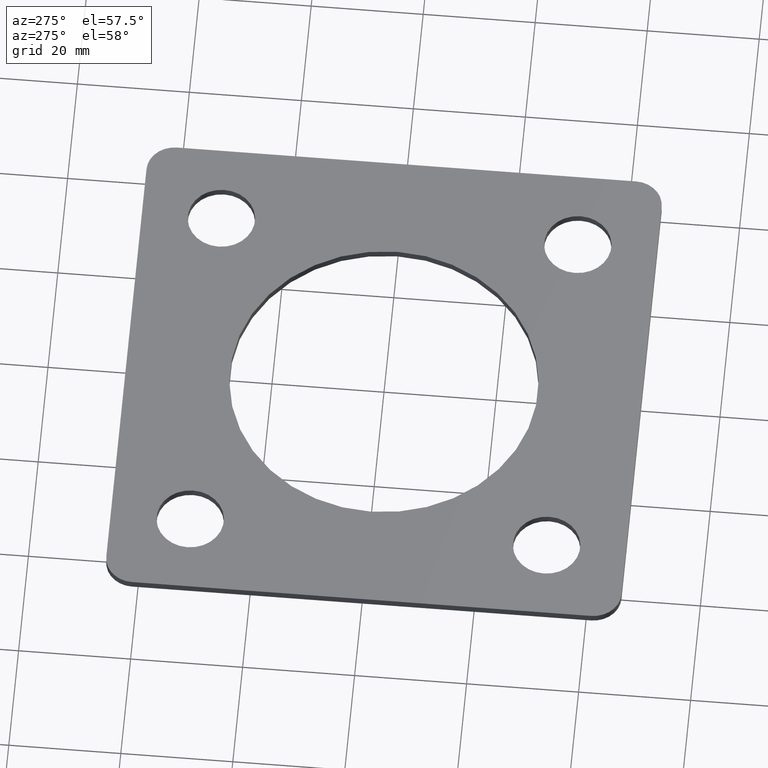
[diagram: clean part render]
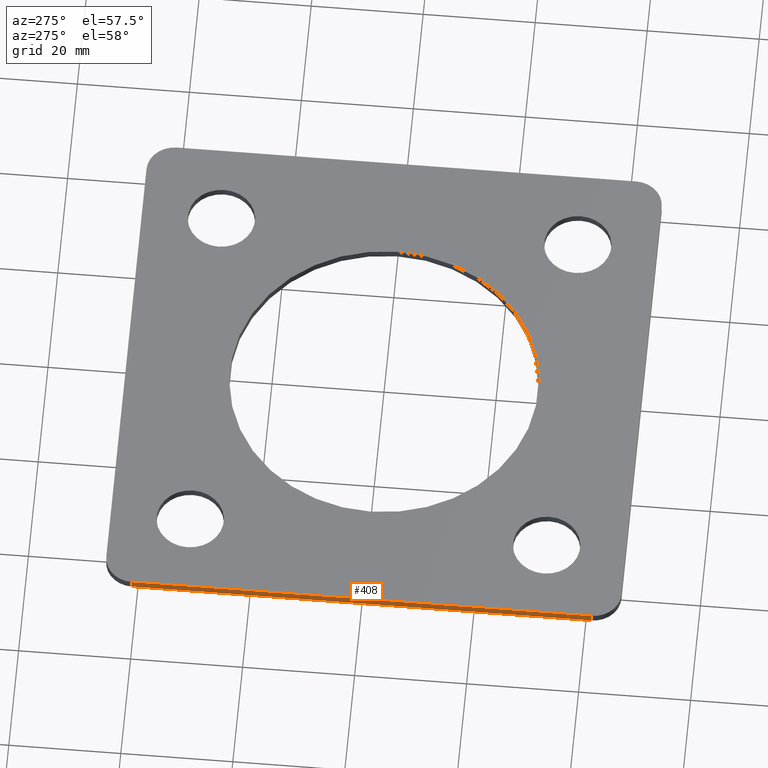
[diagram: same view with one face highlighted and labeled with its STEP entity id]
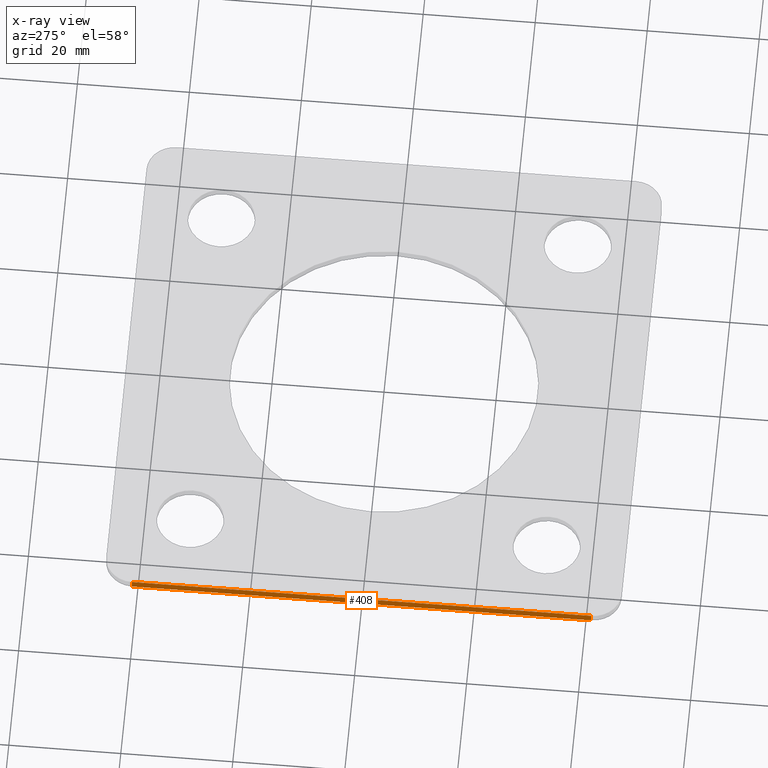
[diagram: x-ray of the same camera — body ghosted, the highlighted face saturated]
A machine part, auxiliary view. The second image highlights one B-rep face of the part: STEP entity #408.
The next image is the same camera in x-ray: the body ghosted, the highlighted face saturated — about 0% of this face is hidden behind the body in this view.
In plain terms, the highlighted planar face has unit normal (-1, -0, 0).
Its self-contained STEP definition (entity closure, byte-faithful):
#7 = VECTOR ( 'NONE', #578, 1000.000000000000000 ) ;
#73 = FACE_OUTER_BOUND ( 'NONE', #660, .T. ) ;
#114 = VERTEX_POINT ( 'NONE', #525 ) ;
#123 = EDGE_CURVE ( 'NONE', #602, #368, #583, .T. ) ;
#133 = ORIENTED_EDGE ( 'NONE', *, *, #123, .T. ) ;
#135 = CARTESIAN_POINT ( 'NONE',  ( -46.00000000000000711, 40.99999999999999289, -1.500000000000000000 ) ) ;
#139 = VECTOR ( 'NONE', #473, 1000.000000000000000 ) ;
#167 = EDGE_CURVE ( 'NONE', #527, #114, #520, .T. ) ;
#199 = ORIENTED_EDGE ( 'NONE', *, *, #167, .F. ) ;
#239 = CARTESIAN_POINT ( 'NONE',  ( -46.00000000000000711, 45.99999999999999289, -1.500000000000000000 ) ) ;
#253 = LINE ( 'NONE', #442, #652 ) ;
#297 = AXIS2_PLACEMENT_3D ( 'NONE', #239, #651, #301 ) ;
#301 = DIRECTION ( 'NONE',  ( 7.542275982507855914E-17, -1.000000000000000000, 0.000000000000000000 ) ) ;
#318 = EDGE_CURVE ( 'NONE', #527, #602, #253, .T. ) ;
#368 = VERTEX_POINT ( 'NONE', #703 ) ;
#406 = LINE ( 'NONE', #573, #632 ) ;
#408 = ADVANCED_FACE ( 'NONE', ( #73 ), #588, .T. ) ;
#442 = CARTESIAN_POINT ( 'NONE',  ( -46.00000000000000711, 40.99999999999999289, -1.500000000000000000 ) ) ;
#453 = CARTESIAN_POINT ( 'NONE',  ( -46.00000000000000711, 40.99999999999999289, 0.000000000000000000 ) ) ;
#473 = DIRECTION ( 'NONE',  ( 7.542275982507857147E-17, -1.000000000000000000, 0.000000000000000000 ) ) ;
#492 = DIRECTION ( 'NONE',  ( -0.000000000000000000, -0.000000000000000000, -1.000000000000000000 ) ) ;
#518 = DIRECTION ( 'NONE',  ( 0.000000000000000000, 0.000000000000000000, 1.000000000000000000 ) ) ;
#520 = LINE ( 'NONE', #530, #139 ) ;
#525 = CARTESIAN_POINT ( 'NONE',  ( -46.00000000000000000, -41.00000000000000000, 0.000000000000000000 ) ) ;
#527 = VERTEX_POINT ( 'NONE', #453 ) ;
#530 = CARTESIAN_POINT ( 'NONE',  ( -46.00000000000000711, 45.99999999999999289, 0.000000000000000000 ) ) ;
#573 = CARTESIAN_POINT ( 'NONE',  ( -46.00000000000000000, -41.00000000000000000, -1.500000000000000000 ) ) ;
#578 = DIRECTION ( 'NONE',  ( 7.542275982507857147E-17, -1.000000000000000000, 0.000000000000000000 ) ) ;
#583 = LINE ( 'NONE', #646, #7 ) ;
#588 = PLANE ( 'NONE',  #297 ) ;
#602 = VERTEX_POINT ( 'NONE', #135 ) ;
#632 = VECTOR ( 'NONE', #518, 1000.000000000000000 ) ;
#646 = CARTESIAN_POINT ( 'NONE',  ( -46.00000000000000711, 45.99999999999999289, -1.500000000000000000 ) ) ;
#651 = DIRECTION ( 'NONE',  ( -1.000000000000000000, -7.542275982507855914E-17, 0.000000000000000000 ) ) ;
#652 = VECTOR ( 'NONE', #492, 1000.000000000000000 ) ;
#660 = EDGE_LOOP ( 'NONE', ( #133, #725, #199, #712 ) ) ;
#699 = EDGE_CURVE ( 'NONE', #368, #114, #406, .T. ) ;
#703 = CARTESIAN_POINT ( 'NONE',  ( -46.00000000000000000, -41.00000000000000000, -1.500000000000000000 ) ) ;
#712 = ORIENTED_EDGE ( 'NONE', *, *, #318, .T. ) ;
#725 = ORIENTED_EDGE ( 'NONE', *, *, #699, .T. ) ;